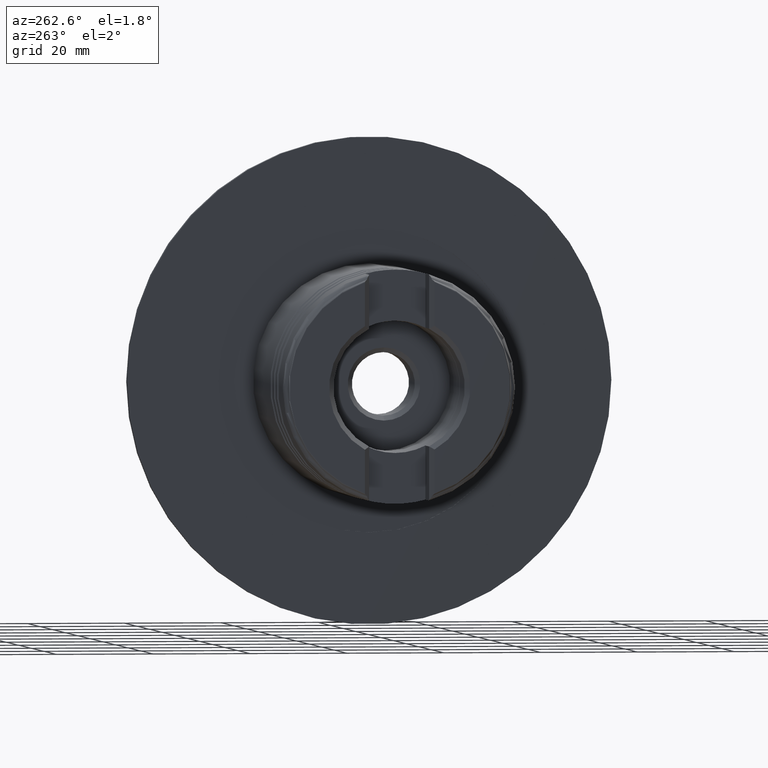
[diagram: clean part render]
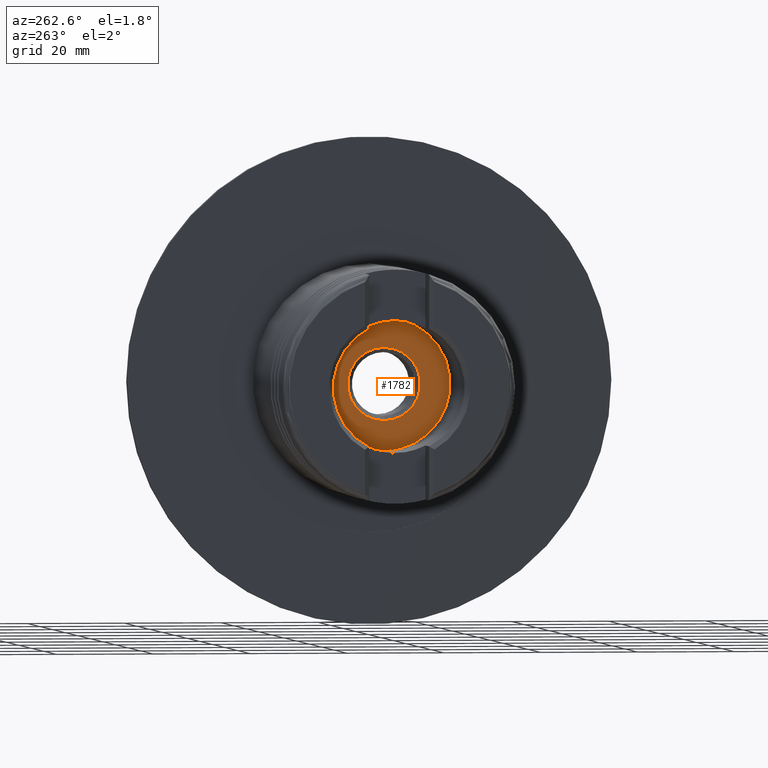
[diagram: same view with one face highlighted and labeled with its STEP entity id]
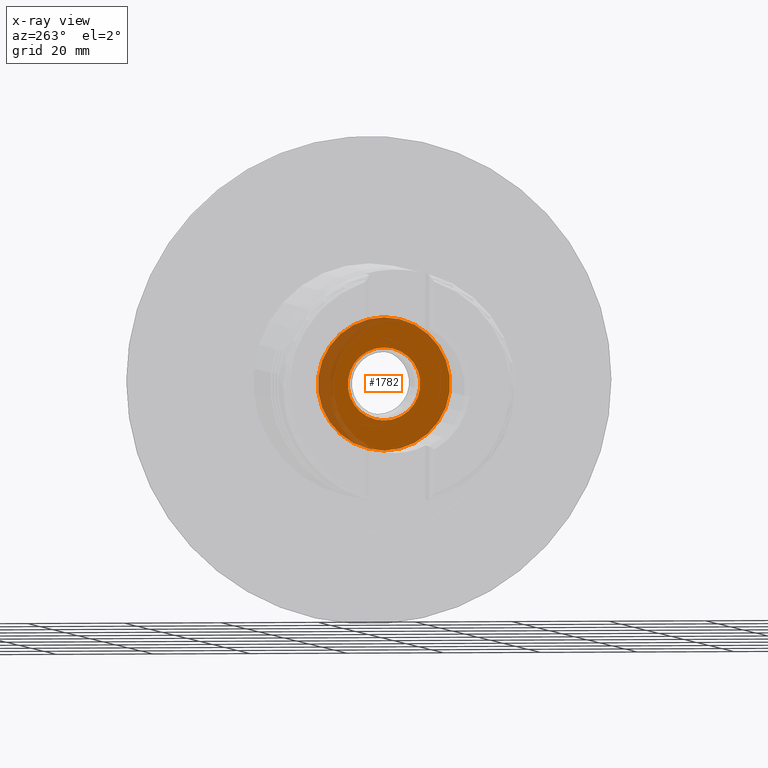
[diagram: x-ray of the same camera — body ghosted, the highlighted face saturated]
A machine part, auxiliary view. The second image highlights one B-rep face of the part: STEP entity #1782.
The next image is the same camera in x-ray: the body ghosted, the highlighted face saturated — about 22% of this face is hidden behind the body in this view.
In plain terms, the highlighted planar face has unit normal (1, 0, 0).
Its self-contained STEP definition (entity closure, byte-faithful):
#73 = EDGE_LOOP ( 'NONE', ( #2226, #4967 ) ) ;
#105 = FACE_OUTER_BOUND ( 'NONE', #1278, .T. ) ;
#149 = DIRECTION ( 'NONE',  ( 1.000000000000000000, -0.0000000000000000000, -0.0000000000000000000 ) ) ;
#185 = DIRECTION ( 'NONE',  ( 1.000000000000000000, 0.0000000000000000000, -0.0000000000000000000 ) ) ;
#230 = EDGE_CURVE ( 'NONE', #2225, #641, #351, .T. ) ;
#351 = CIRCLE ( 'NONE', #1012, 7.499999999999997335 ) ;
#569 = CARTESIAN_POINT ( 'NONE',  ( -24.79994866000000897, 0.0000000000000000000, 0.0000000000000000000 ) ) ;
#641 = VERTEX_POINT ( 'NONE', #2712 ) ;
#656 = CARTESIAN_POINT ( 'NONE',  ( -24.79994866000000897, 0.0000000000000000000, 0.0000000000000000000 ) ) ;
#1012 = AXIS2_PLACEMENT_3D ( 'NONE', #3670, #1614, #1235 ) ;
#1057 = FACE_BOUND ( 'NONE', #73, .T. ) ;
#1065 = AXIS2_PLACEMENT_3D ( 'NONE', #2643, #185, #1396 ) ;
#1235 = DIRECTION ( 'NONE',  ( 0.0000000000000000000, 0.0000000000000000000, -1.000000000000000000 ) ) ;
#1278 = EDGE_LOOP ( 'NONE', ( #1828, #4471 ) ) ;
#1396 = DIRECTION ( 'NONE',  ( -0.0000000000000000000, 0.0000000000000000000, -1.000000000000000000 ) ) ;
#1482 = DIRECTION ( 'NONE',  ( 1.000000000000000000, -0.0000000000000000000, -0.0000000000000000000 ) ) ;
#1614 = DIRECTION ( 'NONE',  ( 1.000000000000000000, -0.0000000000000000000, -0.0000000000000000000 ) ) ;
#1648 = AXIS2_PLACEMENT_3D ( 'NONE', #656, #1482, #3542 ) ;
#1782 = ADVANCED_FACE ( 'NONE', ( #105, #1057 ), #4333, .F. ) ;
#1828 = ORIENTED_EDGE ( 'NONE', *, *, #3990, .F. ) ;
#1838 = CIRCLE ( 'NONE', #2484, 13.64999999999999680 ) ;
#1964 = CARTESIAN_POINT ( 'NONE',  ( -24.79994866000000897, 0.0000000000000000000, 0.0000000000000000000 ) ) ;
#2083 = VERTEX_POINT ( 'NONE', #2678 ) ;
#2225 = VERTEX_POINT ( 'NONE', #2844 ) ;
#2226 = ORIENTED_EDGE ( 'NONE', *, *, #230, .T. ) ;
#2254 = CIRCLE ( 'NONE', #3693, 13.64999999999999680 ) ;
#2484 = AXIS2_PLACEMENT_3D ( 'NONE', #1964, #4846, #4809 ) ;
#2643 = CARTESIAN_POINT ( 'NONE',  ( -24.79994866000000897, 7.499999999999997335, 0.0000000000000000000 ) ) ;
#2678 = CARTESIAN_POINT ( 'NONE',  ( -24.79994866000000897, 0.0000000000000000000, -13.64999999999999680 ) ) ;
#2712 = CARTESIAN_POINT ( 'NONE',  ( -24.79994866000000897, 9.184850993605145972E-16, -7.499999999999997335 ) ) ;
#2844 = CARTESIAN_POINT ( 'NONE',  ( -24.79994866000000897, 0.0000000000000000000, 7.499999999999997335 ) ) ;
#3542 = DIRECTION ( 'NONE',  ( 0.0000000000000000000, 0.0000000000000000000, -1.000000000000000000 ) ) ;
#3570 = CIRCLE ( 'NONE', #1648, 7.499999999999997335 ) ;
#3670 = CARTESIAN_POINT ( 'NONE',  ( -24.79994866000000897, 0.0000000000000000000, 0.0000000000000000000 ) ) ;
#3693 = AXIS2_PLACEMENT_3D ( 'NONE', #569, #149, #3912 ) ;
#3912 = DIRECTION ( 'NONE',  ( 0.0000000000000000000, 0.0000000000000000000, -1.000000000000000000 ) ) ;
#3990 = EDGE_CURVE ( 'NONE', #2083, #5306, #2254, .T. ) ;
#4333 = PLANE ( 'NONE',  #1065 ) ;
#4471 = ORIENTED_EDGE ( 'NONE', *, *, #4527, .F. ) ;
#4483 = CARTESIAN_POINT ( 'NONE',  ( -24.79994866000000897, 1.671642880836136705E-15, 13.64999999999999680 ) ) ;
#4527 = EDGE_CURVE ( 'NONE', #5306, #2083, #1838, .T. ) ;
#4809 = DIRECTION ( 'NONE',  ( 0.0000000000000000000, 0.0000000000000000000, -1.000000000000000000 ) ) ;
#4846 = DIRECTION ( 'NONE',  ( 1.000000000000000000, -0.0000000000000000000, -0.0000000000000000000 ) ) ;
#4936 = EDGE_CURVE ( 'NONE', #641, #2225, #3570, .T. ) ;
#4967 = ORIENTED_EDGE ( 'NONE', *, *, #4936, .T. ) ;
#5306 = VERTEX_POINT ( 'NONE', #4483 ) ;